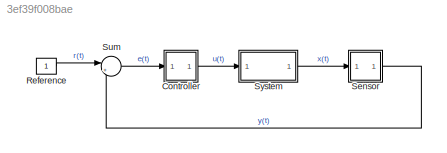
MODEL slx_3ef39f008bae
KIND model
CONFIG AbsTol = auto
CONFIG EnableMultiTasking = off
CONFIG FixedStep = auto
CONFIG MaxStep = auto
CONFIG MinStep = auto
CONFIG RelTol = 1e-3
CONFIG SampleTimeConstraint = Unconstrained
CONFIG SolverName = VariableStepAuto
CONFIG StartTime = 0.0
CONFIG StopTime = 10.0
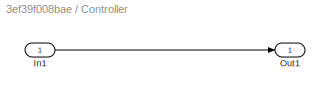
BLOCK [SubSystem] Controller
  Ports = [1, 1]
  RequestExecContextInheritance = off
  ShowPortLabels = none
BLOCK [Inport] Controller/In1
BLOCK [Outport] Controller/Out1
BLOCK [Constant] Reference
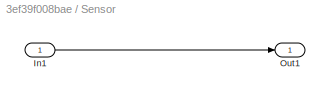
BLOCK [SubSystem] Sensor
  Ports = [1, 1]
  RequestExecContextInheritance = off
  ShowPortLabels = none
BLOCK [Inport] Sensor/In1
BLOCK [Outport] Sensor/Out1
BLOCK [Sum] Sum
  Inputs = |+-
  Ports = [2, 1]
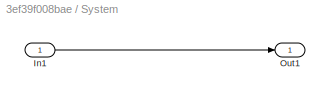
BLOCK [SubSystem] System
  Ports = [1, 1]
  RequestExecContextInheritance = off
  ShowPortLabels = none
BLOCK [Inport] System/In1
BLOCK [Outport] System/Out1
LINE Controller/In1:1 -> Controller/Out1:1
LINE Controller:1 -> System:1
LINE Reference:1 -> Sum:1
LINE Sensor/In1:1 -> Sensor/Out1:1
LINE Sensor:1 -> Sum:2
LINE Sum:1 -> Controller:1
LINE System/In1:1 -> System/Out1:1
LINE System:1 -> Sensor:1
